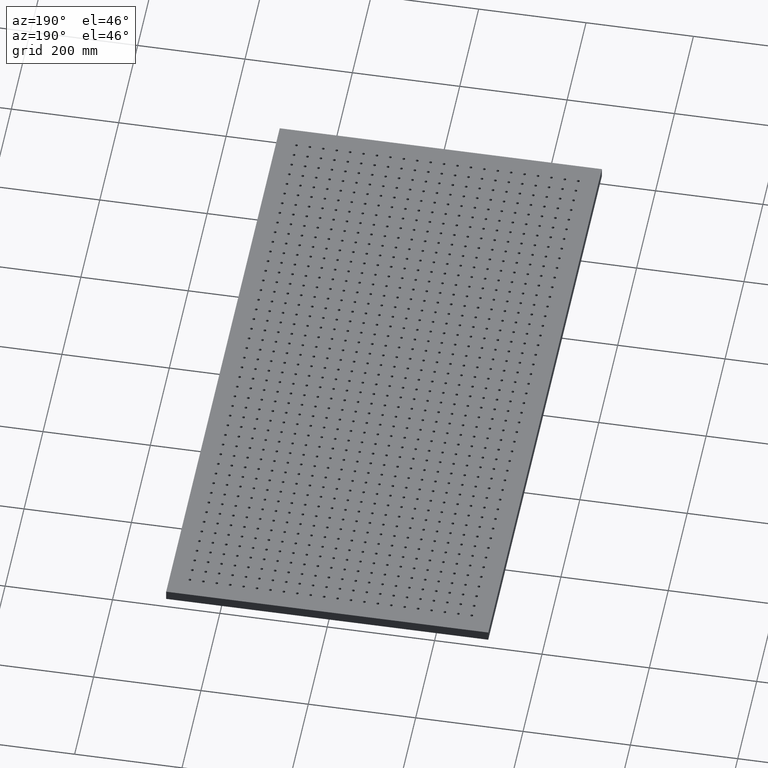
[diagram: clean part render]
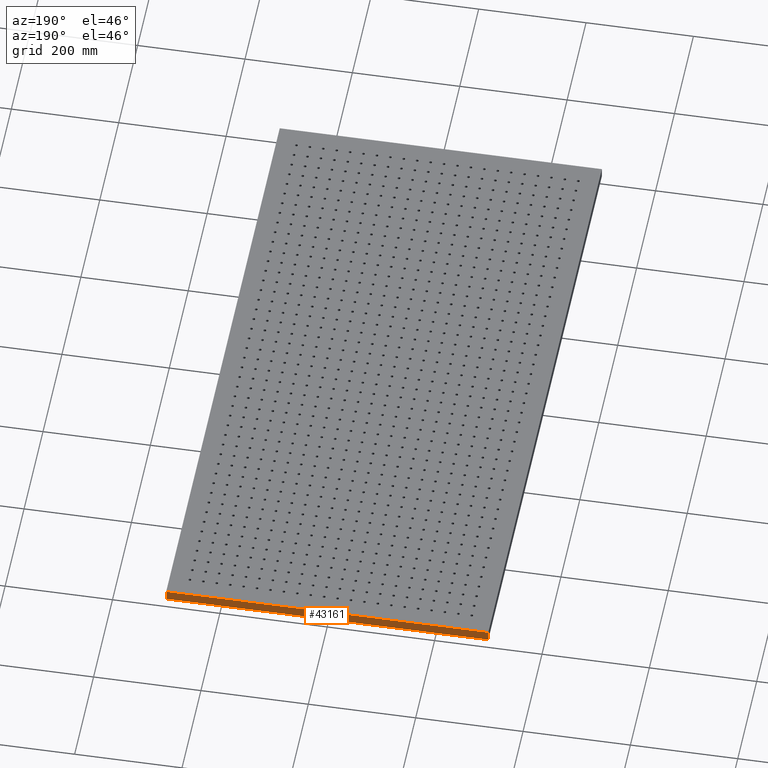
[diagram: same view with one face highlighted and labeled with its STEP entity id]
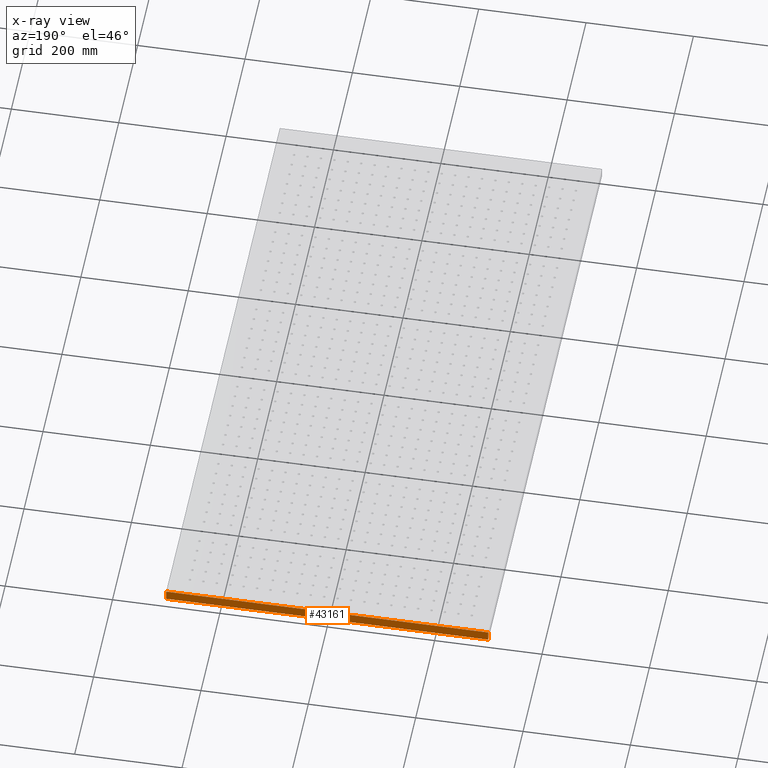
[diagram: x-ray of the same camera — body ghosted, the highlighted face saturated]
A machine part, auxiliary view. The second image highlights one B-rep face of the part: STEP entity #43161.
The next image is the same camera in x-ray: the body ghosted, the highlighted face saturated — about 0% of this face is hidden behind the body in this view.
In plain terms, the highlighted planar face has unit normal (0, -1, 0).
Its self-contained STEP definition (entity closure, byte-faithful):
#3253 = EDGE_CURVE ( 'NONE', #67581, #36968, #25728, .T. ) ;
#5442 = DIRECTION ( 'NONE',  ( -0.0000000000000000000, -0.0000000000000000000, -1.000000000000000000 ) ) ;
#5991 = PLANE ( 'NONE',  #26937 ) ;
#12811 = EDGE_CURVE ( 'NONE', #73179, #72437, #51761, .T. ) ;
#13012 = DIRECTION ( 'NONE',  ( -1.000000000000000000, -0.0000000000000000000, -0.0000000000000000000 ) ) ;
#14105 = CARTESIAN_POINT ( 'NONE',  ( 299.9999999999999400, 599.9999999999998900, 19.00000000000000000 ) ) ;
#17427 = ORIENTED_EDGE ( 'NONE', *, *, #23582, .T. ) ;
#17658 = ORIENTED_EDGE ( 'NONE', *, *, #30608, .F. ) ;
#23208 = ORIENTED_EDGE ( 'NONE', *, *, #12811, .T. ) ;
#23582 = EDGE_CURVE ( 'NONE', #72437, #36968, #45337, .T. ) ;
#25508 = EDGE_LOOP ( 'NONE', ( #17427, #38125, #17658, #23208 ) ) ;
#25728 = LINE ( 'NONE', #34310, #39328 ) ;
#26937 = AXIS2_PLACEMENT_3D ( 'NONE', #52281, #69735, #35115 ) ;
#30608 = EDGE_CURVE ( 'NONE', #73179, #67581, #41685, .T. ) ;
#34310 = CARTESIAN_POINT ( 'NONE',  ( -300.0000000000000600, 599.9999999999998900, 19.00000000000000000 ) ) ;
#35115 = DIRECTION ( 'NONE',  ( 0.0000000000000000000, -0.0000000000000000000, -1.000000000000000000 ) ) ;
#36406 = VECTOR ( 'NONE', #48496, 1000.000000000000000 ) ;
#36968 = VERTEX_POINT ( 'NONE', #41120 ) ;
#38125 = ORIENTED_EDGE ( 'NONE', *, *, #3253, .F. ) ;
#38915 = CARTESIAN_POINT ( 'NONE',  ( -300.0000000000000600, 599.9999999999998900, 19.00000000000000000 ) ) ;
#39328 = VECTOR ( 'NONE', #5442, 1000.000000000000000 ) ;
#41120 = CARTESIAN_POINT ( 'NONE',  ( -300.0000000000000600, 599.9999999999998900, 0.0000000000000000000 ) ) ;
#41685 = LINE ( 'NONE', #74150, #70655 ) ;
#43161 = ADVANCED_FACE ( 'NONE', ( #53036 ), #5991, .F. ) ;
#45337 = LINE ( 'NONE', #47629, #58925 ) ;
#47629 = CARTESIAN_POINT ( 'NONE',  ( -300.0000000000000600, 599.9999999999998900, 0.0000000000000000000 ) ) ;
#48496 = DIRECTION ( 'NONE',  ( -0.0000000000000000000, -0.0000000000000000000, -1.000000000000000000 ) ) ;
#51761 = LINE ( 'NONE', #14105, #36406 ) ;
#52281 = CARTESIAN_POINT ( 'NONE',  ( -300.0000000000000600, 599.9999999999998900, 19.00000000000000000 ) ) ;
#53036 = FACE_OUTER_BOUND ( 'NONE', #25508, .T. ) ;
#56445 = DIRECTION ( 'NONE',  ( -1.000000000000000000, -0.0000000000000000000, -0.0000000000000000000 ) ) ;
#58925 = VECTOR ( 'NONE', #13012, 1000.000000000000000 ) ;
#63690 = CARTESIAN_POINT ( 'NONE',  ( 299.9999999999999400, 599.9999999999998900, 0.0000000000000000000 ) ) ;
#64618 = CARTESIAN_POINT ( 'NONE',  ( 299.9999999999999400, 599.9999999999998900, 19.00000000000000000 ) ) ;
#67581 = VERTEX_POINT ( 'NONE', #38915 ) ;
#69735 = DIRECTION ( 'NONE',  ( 0.0000000000000000000, -1.000000000000000000, 0.0000000000000000000 ) ) ;
#70655 = VECTOR ( 'NONE', #56445, 1000.000000000000000 ) ;
#72437 = VERTEX_POINT ( 'NONE', #63690 ) ;
#73179 = VERTEX_POINT ( 'NONE', #64618 ) ;
#74150 = CARTESIAN_POINT ( 'NONE',  ( -300.0000000000000600, 599.9999999999998900, 19.00000000000000000 ) ) ;